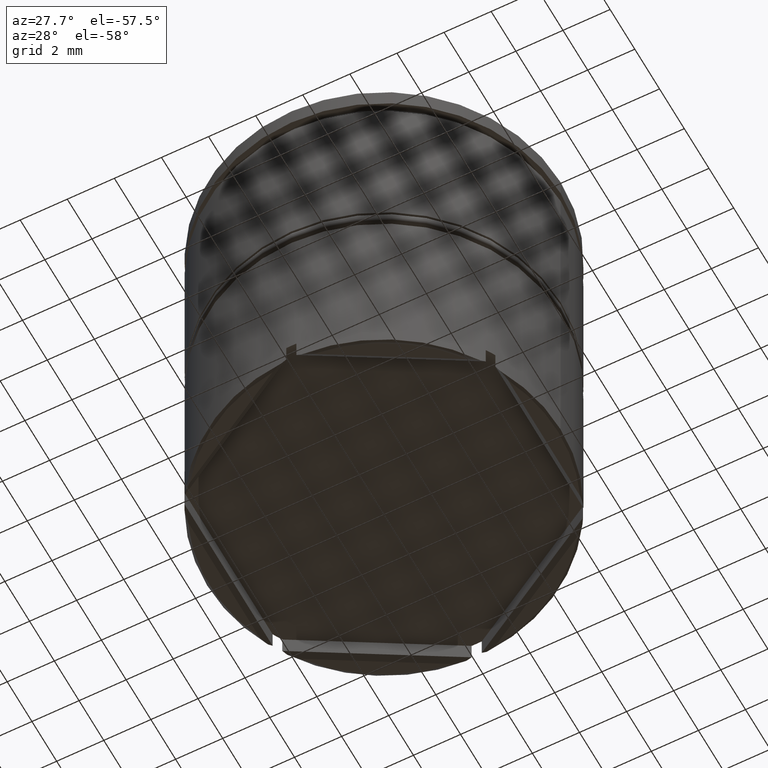
[diagram: clean part render]
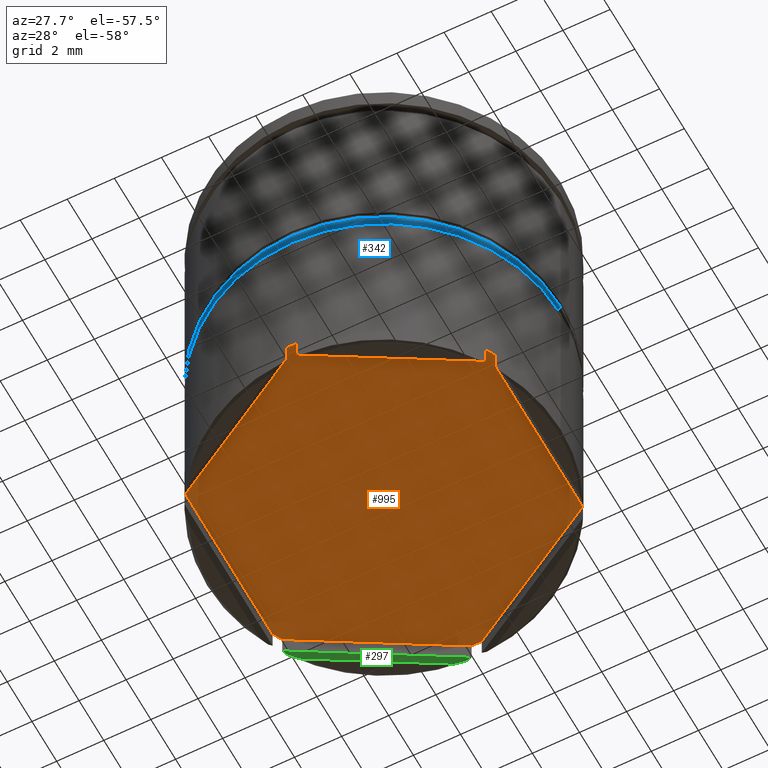
[diagram: same view with three faces highlighted in distinct colors, each labeled with its STEP entity id]
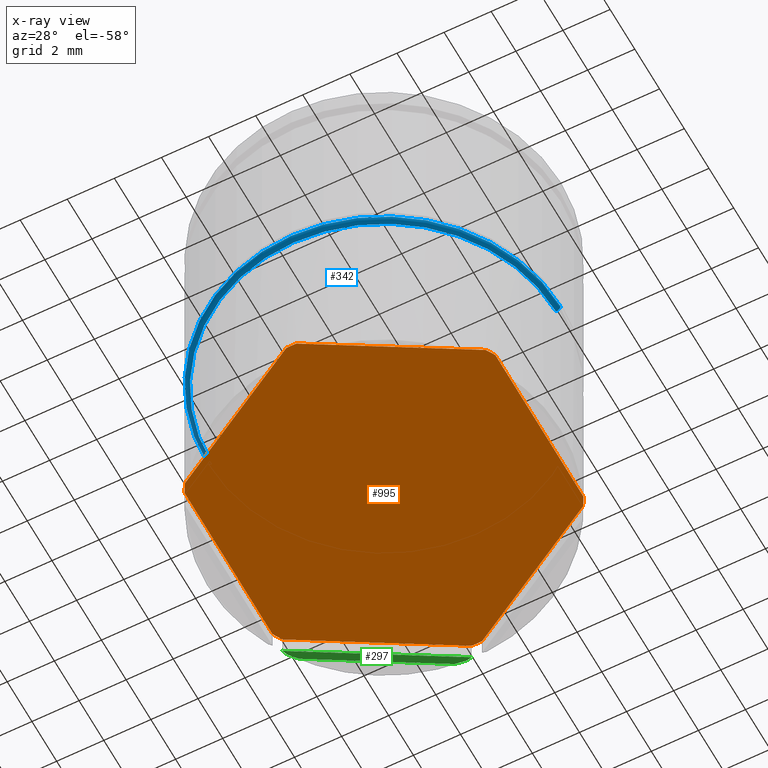
[diagram: x-ray of the same camera — body ghosted, the three highlighted faces saturated]
A machine part, auxiliary view with three faces highlighted in distinct colors.
The next image is the same camera in x-ray (body ghosted, the three faces saturated) — at least one of them is partly hidden behind the body in this view.
Their STEP definitions:

[orange] entity #995 — the highlighted planar face has unit normal (0, 0, -1).
#10 = CARTESIAN_POINT ( 'NONE',  ( -0.2149554298195408275, 7.496918978032982572, -16.50000000000000000 ) ) ;
#17 = CARTESIAN_POINT ( 'NONE',  ( -6.385044570180463452, 3.934616351921620403, -16.50000000000000000 ) ) ;
#30 = AXIS2_PLACEMENT_3D ( 'NONE', #534, #671, #566 ) ;
#31 = DIRECTION ( 'NONE',  ( -0.000000000000000000, -0.000000000000000000, 1.000000000000000000 ) ) ;
#33 = CARTESIAN_POINT ( 'NONE',  ( 6.600000000000005862, -3.810511776651533733, -16.50000000000000000 ) ) ;
#34 = VECTOR ( 'NONE', #1549, 1000.000000000000000 ) ;
#61 = AXIS2_PLACEMENT_3D ( 'NONE', #1058, #821, #684 ) ;
#76 = EDGE_CURVE ( 'NONE', #780, #1196, #521, .T. ) ;
#133 = CIRCLE ( 'NONE', #61, 7.500000000000000000 ) ;
#191 = VECTOR ( 'NONE', #811, 1000.000000000000000 ) ;
#194 = ORIENTED_EDGE ( 'NONE', *, *, #763, .F. ) ;
#219 = VERTEX_POINT ( 'NONE', #1021 ) ;
#257 = DIRECTION ( 'NONE',  ( -1.000000000000000000, 0.000000000000000000, -0.000000000000000000 ) ) ;
#272 = CARTESIAN_POINT ( 'NONE',  ( -6.385044570180465229, -3.934616351921614186, -16.50000000000000000 ) ) ;
#283 = VERTEX_POINT ( 'NONE', #1148 ) ;
#284 = DIRECTION ( 'NONE',  ( -0.000000000000000000, -0.000000000000000000, 1.000000000000000000 ) ) ;
#290 = ORIENTED_EDGE ( 'NONE', *, *, #1226, .F. ) ;
#318 = AXIS2_PLACEMENT_3D ( 'NONE', #889, #31, #653 ) ;
#319 = CARTESIAN_POINT ( 'NONE',  ( -0.2149554298195403834, -7.496918978032981684, -16.50000000000000000 ) ) ;
#326 = DIRECTION ( 'NONE',  ( 0.8660254037844385966, -0.5000000000000001110, 0.000000000000000000 ) ) ;
#328 = VERTEX_POINT ( 'NONE', #1180 ) ;
#329 = CARTESIAN_POINT ( 'NONE',  ( 0.000000000000000000, 0.000000000000000000, -16.50000000000000000 ) ) ;
#344 = DIRECTION ( 'NONE',  ( 0.8660254037844387076, 0.4999999999999997780, 0.000000000000000000 ) ) ;
#362 = CIRCLE ( 'NONE', #1219, 7.500000000000000000 ) ;
#366 = CARTESIAN_POINT ( 'NONE',  ( 6.600000000000003197, -3.562302626111365722, -16.50000000000000000 ) ) ;
#391 = DIRECTION ( 'NONE',  ( 0.000000000000000000, 0.000000000000000000, -1.000000000000000000 ) ) ;
#393 = PLANE ( 'NONE',  #1032 ) ;
#429 = CARTESIAN_POINT ( 'NONE',  ( 0.000000000000000000, 7.621023553303065690, -16.50000000000000000 ) ) ;
#437 = CARTESIAN_POINT ( 'NONE',  ( 6.385044570180463452, -3.934616351921617738, -16.50000000000000000 ) ) ;
#448 = DIRECTION ( 'NONE',  ( -1.000000000000000000, 0.000000000000000000, 0.000000000000000000 ) ) ;
#456 = DIRECTION ( 'NONE',  ( -0.8660254037844385966, 0.5000000000000001110, 0.000000000000000000 ) ) ;
#466 = LINE ( 'NONE', #979, #1166 ) ;
#519 = FACE_OUTER_BOUND ( 'NONE', #1519, .T. ) ;
#521 = CIRCLE ( 'NONE', #1453, 7.500000000000000000 ) ;
#525 = VECTOR ( 'NONE', #456, 1000.000000000000000 ) ;
#534 = CARTESIAN_POINT ( 'NONE',  ( 0.000000000000000000, 0.000000000000000000, -16.50000000000000000 ) ) ;
#538 = CARTESIAN_POINT ( 'NONE',  ( 0.2149554298195399393, -7.496918978032981684, -16.50000000000000000 ) ) ;
#557 = VECTOR ( 'NONE', #326, 1000.000000000000000 ) ;
#560 = CARTESIAN_POINT ( 'NONE',  ( -6.600000000000004974, -3.810511776651531513, -16.50000000000000000 ) ) ;
#566 = DIRECTION ( 'NONE',  ( -1.000000000000000000, 0.000000000000000000, 0.000000000000000000 ) ) ;
#568 = EDGE_CURVE ( 'NONE', #1118, #1526, #466, .T. ) ;
#585 = CIRCLE ( 'NONE', #318, 7.500000000000000000 ) ;
#620 = CARTESIAN_POINT ( 'NONE',  ( 6.385044570180465229, 3.934616351921614186, -16.50000000000000000 ) ) ;
#653 = DIRECTION ( 'NONE',  ( -1.000000000000000000, 7.283063041541026905E-14, 0.000000000000000000 ) ) ;
#671 = DIRECTION ( 'NONE',  ( -0.000000000000000000, -0.000000000000000000, 1.000000000000000000 ) ) ;
#684 = DIRECTION ( 'NONE',  ( -1.000000000000000000, 0.000000000000000000, 0.000000000000000000 ) ) ;
#744 = CIRCLE ( 'NONE', #30, 7.500000000000000000 ) ;
#749 = DIRECTION ( 'NONE',  ( -1.000000000000000000, -5.595524044110788964E-14, 0.000000000000000000 ) ) ;
#753 = EDGE_CURVE ( 'NONE', #328, #1587, #1292, .T. ) ;
#763 = EDGE_CURVE ( 'NONE', #283, #1555, #744, .T. ) ;
#780 = VERTEX_POINT ( 'NONE', #437 ) ;
#781 = VERTEX_POINT ( 'NONE', #319 ) ;
#811 = DIRECTION ( 'NONE',  ( 0.000000000000000000, 1.000000000000000000, 0.000000000000000000 ) ) ;
#815 = EDGE_CURVE ( 'NONE', #780, #847, #1301, .T. ) ;
#821 = DIRECTION ( 'NONE',  ( -0.000000000000000000, -0.000000000000000000, 1.000000000000000000 ) ) ;
#847 = VERTEX_POINT ( 'NONE', #538 ) ;
#848 = CARTESIAN_POINT ( 'NONE',  ( 0.000000000000000000, 0.000000000000000000, -16.50000000000000000 ) ) ;
#872 = EDGE_CURVE ( 'NONE', #1353, #1526, #585, .T. ) ;
#886 = DIRECTION ( 'NONE',  ( -0.000000000000000000, -0.000000000000000000, 1.000000000000000000 ) ) ;
#889 = CARTESIAN_POINT ( 'NONE',  ( 0.000000000000000000, 0.000000000000000000, -16.50000000000000000 ) ) ;
#901 = ORIENTED_EDGE ( 'NONE', *, *, #568, .T. ) ;
#902 = EDGE_CURVE ( 'NONE', #781, #1587, #912, .T. ) ;
#912 = LINE ( 'NONE', #1094, #525 ) ;
#930 = VECTOR ( 'NONE', #963, 1000.000000000000000 ) ;
#935 = EDGE_CURVE ( 'NONE', #1118, #219, #362, .T. ) ;
#945 = ORIENTED_EDGE ( 'NONE', *, *, #935, .F. ) ;
#963 = DIRECTION ( 'NONE',  ( 1.138117120255423023E-16, -1.000000000000000000, 0.000000000000000000 ) ) ;
#968 = ORIENTED_EDGE ( 'NONE', *, *, #753, .F. ) ;
#979 = CARTESIAN_POINT ( 'NONE',  ( -6.600000000000004974, 3.810511776651534621, -16.50000000000000000 ) ) ;
#990 = CARTESIAN_POINT ( 'NONE',  ( 0.000000000000000000, 0.000000000000000000, -16.50000000000000000 ) ) ;
#995 = ADVANCED_FACE ( 'NONE', ( #519 ), #393, .T. ) ;
#1021 = CARTESIAN_POINT ( 'NONE',  ( -6.600000000000003197, 3.562302626111366610, -16.50000000000000000 ) ) ;
#1032 = AXIS2_PLACEMENT_3D ( 'NONE', #1383, #391, #257 ) ;
#1033 = ORIENTED_EDGE ( 'NONE', *, *, #902, .T. ) ;
#1058 = CARTESIAN_POINT ( 'NONE',  ( 0.000000000000000000, 0.000000000000000000, -16.50000000000000000 ) ) ;
#1068 = CARTESIAN_POINT ( 'NONE',  ( 6.600000000000004974, 3.810511776651531957, -16.50000000000000000 ) ) ;
#1093 = ORIENTED_EDGE ( 'NONE', *, *, #872, .F. ) ;
#1094 = CARTESIAN_POINT ( 'NONE',  ( -4.310144132208485433E-16, -7.621023553303065690, -16.50000000000000000 ) ) ;
#1118 = VERTEX_POINT ( 'NONE', #17 ) ;
#1126 = DIRECTION ( 'NONE',  ( -0.000000000000000000, -0.000000000000000000, 1.000000000000000000 ) ) ;
#1148 = CARTESIAN_POINT ( 'NONE',  ( 6.600000000000003197, 3.562302626111367498, -16.50000000000000000 ) ) ;
#1162 = ORIENTED_EDGE ( 'NONE', *, *, #1235, .T. ) ;
#1166 = VECTOR ( 'NONE', #344, 1000.000000000000114 ) ;
#1172 = DIRECTION ( 'NONE',  ( -1.000000000000000000, 0.000000000000000000, 0.000000000000000000 ) ) ;
#1178 = LINE ( 'NONE', #560, #191 ) ;
#1180 = CARTESIAN_POINT ( 'NONE',  ( -6.600000000000003197, -3.562302626111366610, -16.50000000000000000 ) ) ;
#1196 = VERTEX_POINT ( 'NONE', #366 ) ;
#1208 = ORIENTED_EDGE ( 'NONE', *, *, #76, .F. ) ;
#1219 = AXIS2_PLACEMENT_3D ( 'NONE', #848, #886, #749 ) ;
#1226 = EDGE_CURVE ( 'NONE', #781, #847, #133, .T. ) ;
#1228 = EDGE_CURVE ( 'NONE', #283, #1196, #1289, .T. ) ;
#1230 = CARTESIAN_POINT ( 'NONE',  ( 0.2149554298195403834, 7.496918978032981684, -16.50000000000000000 ) ) ;
#1235 = EDGE_CURVE ( 'NONE', #1353, #1555, #1321, .T. ) ;
#1244 = AXIS2_PLACEMENT_3D ( 'NONE', #990, #284, #1172 ) ;
#1289 = LINE ( 'NONE', #1068, #930 ) ;
#1292 = CIRCLE ( 'NONE', #1244, 7.500000000000000000 ) ;
#1301 = LINE ( 'NONE', #33, #34 ) ;
#1306 = ORIENTED_EDGE ( 'NONE', *, *, #1228, .T. ) ;
#1308 = EDGE_CURVE ( 'NONE', #328, #219, #1178, .T. ) ;
#1321 = LINE ( 'NONE', #429, #557 ) ;
#1333 = ORIENTED_EDGE ( 'NONE', *, *, #815, .T. ) ;
#1353 = VERTEX_POINT ( 'NONE', #1230 ) ;
#1383 = CARTESIAN_POINT ( 'NONE',  ( 0.000000000000000000, 0.000000000000000000, -16.50000000000000000 ) ) ;
#1453 = AXIS2_PLACEMENT_3D ( 'NONE', #329, #1126, #448 ) ;
#1519 = EDGE_LOOP ( 'NONE', ( #1573, #945, #901, #1093, #1162, #194, #1306, #1208, #1333, #290, #1033, #968 ) ) ;
#1526 = VERTEX_POINT ( 'NONE', #10 ) ;
#1549 = DIRECTION ( 'NONE',  ( -0.8660254037844387076, -0.4999999999999998335, 0.000000000000000000 ) ) ;
#1555 = VERTEX_POINT ( 'NONE', #620 ) ;
#1573 = ORIENTED_EDGE ( 'NONE', *, *, #1308, .T. ) ;
#1587 = VERTEX_POINT ( 'NONE', #272 ) ;

[blue] entity #342 — the highlighted toroidal blend (fillet) surface has major radius 7.3 mm and minor (blend) radius 0.2 mm.
#6 = CARTESIAN_POINT ( 'NONE',  ( 0.000000000000000000, 0.000000000000000000, -8.800000000000002487 ) ) ;
#28 = ORIENTED_EDGE ( 'NONE', *, *, #672, .T. ) ;
#36 = DIRECTION ( 'NONE',  ( 0.000000000000000000, -1.000000000000000000, 0.000000000000000000 ) ) ;
#74 = DIRECTION ( 'NONE',  ( 1.000000000000000000, 0.000000000000000000, 0.000000000000000000 ) ) ;
#80 = AXIS2_PLACEMENT_3D ( 'NONE', #6, #756, #505 ) ;
#123 = VERTEX_POINT ( 'NONE', #1339 ) ;
#143 = DIRECTION ( 'NONE',  ( 1.224646799147353207E-16, 1.000000000000000000, -0.000000000000000000 ) ) ;
#151 = EDGE_CURVE ( 'NONE', #123, #1142, #1261, .T. ) ;
#253 = CARTESIAN_POINT ( 'NONE',  ( -7.299999999999999822, 8.939921633775678831E-16, -8.800000000000002487 ) ) ;
#302 = VERTEX_POINT ( 'NONE', #805 ) ;
#311 = FACE_OUTER_BOUND ( 'NONE', #533, .T. ) ;
#342 = ADVANCED_FACE ( 'NONE', ( #311 ), #578, .T. ) ;
#390 = CARTESIAN_POINT ( 'NONE',  ( 7.500000000000000000, 0.000000000000000000, -8.800000000000002487 ) ) ;
#433 = ORIENTED_EDGE ( 'NONE', *, *, #658, .F. ) ;
#505 = DIRECTION ( 'NONE',  ( 1.000000000000000000, 0.000000000000000000, 0.000000000000000000 ) ) ;
#527 = AXIS2_PLACEMENT_3D ( 'NONE', #1452, #1209, #74 ) ;
#531 = DIRECTION ( 'NONE',  ( 0.000000000000000000, 0.000000000000000000, -1.000000000000000000 ) ) ;
#533 = EDGE_LOOP ( 'NONE', ( #433, #807, #28, #670 ) ) ;
#578 = TOROIDAL_SURFACE ( 'NONE', #873, 7.299999999999999822, 0.2000000000000000111 ) ;
#657 = CARTESIAN_POINT ( 'NONE',  ( 7.299999999999999822, 0.000000000000000000, -8.800000000000002487 ) ) ;
#658 = EDGE_CURVE ( 'NONE', #302, #123, #1484, .T. ) ;
#670 = ORIENTED_EDGE ( 'NONE', *, *, #151, .F. ) ;
#672 = EDGE_CURVE ( 'NONE', #741, #1142, #825, .T. ) ;
#741 = VERTEX_POINT ( 'NONE', #1113 ) ;
#756 = DIRECTION ( 'NONE',  ( 0.000000000000000000, 0.000000000000000000, 1.000000000000000000 ) ) ;
#805 = CARTESIAN_POINT ( 'NONE',  ( -7.299999999999999822, 9.062386313690412402E-16, -9.000000000000001776 ) ) ;
#807 = ORIENTED_EDGE ( 'NONE', *, *, #1319, .F. ) ;
#825 = CIRCLE ( 'NONE', #1087, 0.2000000000000005107 ) ;
#873 = AXIS2_PLACEMENT_3D ( 'NONE', #1070, #917, #1412 ) ;
#875 = AXIS2_PLACEMENT_3D ( 'NONE', #253, #143, #1130 ) ;
#917 = DIRECTION ( 'NONE',  ( 0.000000000000000000, 0.000000000000000000, 1.000000000000000000 ) ) ;
#1070 = CARTESIAN_POINT ( 'NONE',  ( 0.000000000000000000, 0.000000000000000000, -8.800000000000002487 ) ) ;
#1087 = AXIS2_PLACEMENT_3D ( 'NONE', #657, #36, #531 ) ;
#1113 = CARTESIAN_POINT ( 'NONE',  ( 7.299999999999999822, 0.000000000000000000, -9.000000000000001776 ) ) ;
#1130 = DIRECTION ( 'NONE',  ( -1.000000000000000000, 1.224646799147358384E-16, 0.000000000000000000 ) ) ;
#1142 = VERTEX_POINT ( 'NONE', #390 ) ;
#1209 = DIRECTION ( 'NONE',  ( -0.000000000000000000, -0.000000000000000000, -1.000000000000000000 ) ) ;
#1261 = CIRCLE ( 'NONE', #80, 7.500000000000000000 ) ;
#1319 = EDGE_CURVE ( 'NONE', #741, #302, #1571, .T. ) ;
#1339 = CARTESIAN_POINT ( 'NONE',  ( -7.500000000000000000, 9.184850993605145972E-16, -8.800000000000002487 ) ) ;
#1412 = DIRECTION ( 'NONE',  ( 1.000000000000000000, 0.000000000000000000, 0.000000000000000000 ) ) ;
#1452 = CARTESIAN_POINT ( 'NONE',  ( 0.000000000000000000, 0.000000000000000000, -9.000000000000001776 ) ) ;
#1484 = CIRCLE ( 'NONE', #875, 0.1999999999999996503 ) ;
#1571 = CIRCLE ( 'NONE', #527, 7.299999999999999822 ) ;

[green] entity #297 — the highlighted planar face has unit normal (0.3536, -0.6124, -0.7071).
#170 = CARTESIAN_POINT ( 'NONE',  ( -6.268903903865273186, 4.117140250720484396, -17.40000000000000568 ) ) ;
#200 = CARTESIAN_POINT ( 'NONE',  ( -6.043444844604824340, 4.326829627329009220, -17.46886679741648507 ) ) ;
#234 = CARTESIAN_POINT ( 'NONE',  ( -6.308493677530949917, 4.056859455903631506, -17.36759018716113090 ) ) ;
#246 = VECTOR ( 'NONE', #1523, 1000.000000000000114 ) ;
#260 = VERTEX_POINT ( 'NONE', #1307 ) ;
#278 = EDGE_CURVE ( 'NONE', #1177, #1349, #1031, .T. ) ;
#297 = ADVANCED_FACE ( 'NONE', ( #1524 ), #379, .T. ) ;
#340 = CARTESIAN_POINT ( 'NONE',  ( -0.8721550680470913086, 7.348424697666833261, -17.50000000000000000 ) ) ;
#347 = CARTESIAN_POINT ( 'NONE',  ( -0.5783374065156692279, 7.443572463249804372, -17.43549155134247286 ) ) ;
#376 = VERTEX_POINT ( 'NONE', #567 ) ;
#379 = PLANE ( 'NONE',  #412 ) ;
#394 = CARTESIAN_POINT ( 'NONE',  ( -6.298275349237890453, 4.215652692666036039, -17.50000000000000000 ) ) ;
#409 = CARTESIAN_POINT ( 'NONE',  ( -5.927844931952915175, 4.429520793801543732, -17.50000000000000000 ) ) ;
#412 = AXIS2_PLACEMENT_3D ( 'NONE', #899, #754, #1249 ) ;
#435 = ORIENTED_EDGE ( 'NONE', *, *, #507, .F. ) ;
#436 = CARTESIAN_POINT ( 'NONE',  ( -0.2149554298195408275, 7.496918978032982572, -17.30000000000000426 ) ) ;
#463 = CARTESIAN_POINT ( 'NONE',  ( -0.4310960961347331533, 7.487600159991009363, -17.40000000000000568 ) ) ;
#469 = ORIENTED_EDGE ( 'NONE', *, *, #278, .F. ) ;
#500 = EDGE_CURVE ( 'NONE', #1632, #1177, #1544, .T. ) ;
#507 = EDGE_CURVE ( 'NONE', #260, #376, #1400, .T. ) ;
#551 = ORIENTED_EDGE ( 'NONE', *, *, #500, .F. ) ;
#567 = CARTESIAN_POINT ( 'NONE',  ( -6.385044570180463452, 3.934616351921620403, -17.30000000000000426 ) ) ;
#621 = B_SPLINE_CURVE_WITH_KNOTS ( 'NONE', 3,
 ( #409, #200, #1559, #170 ),
 .UNSPECIFIED., .F., .F.,
 ( 4, 4 ),
 ( 1.226634733346699349E-18, 0.0004731837127559787625 ),
 .UNSPECIFIED. ) ;
#628 = CARTESIAN_POINT ( 'NONE',  ( -0.2870446246139899404, 7.494852000398866565, -17.33425454225702822 ) ) ;
#639 = CARTESIAN_POINT ( 'NONE',  ( -0.8721550680470913086, 7.348424697666833261, -17.50000000000000000 ) ) ;
#641 = DIRECTION ( 'NONE',  ( -0.8660254037844388186, -0.4999999999999997780, 0.000000000000000000 ) ) ;
#702 = ORIENTED_EDGE ( 'NONE', *, *, #1259, .F. ) ;
#737 = CARTESIAN_POINT ( 'NONE',  ( -6.347209917643041877, 3.996013937134917260, -17.33425454225702467 ) ) ;
#754 = DIRECTION ( 'NONE',  ( 0.3535533905932736198, -0.6123724356957946924, -0.7071067811865475727 ) ) ;
#899 = CARTESIAN_POINT ( 'NONE',  ( -6.600000000000004974, 3.810511776651534621, -17.30000000000000426 ) ) ;
#956 = EDGE_CURVE ( 'NONE', #376, #1316, #1569, .T. ) ;
#1015 = CARTESIAN_POINT ( 'NONE',  ( -0.2149554298195408275, 7.496918978032982572, -17.30000000000000426 ) ) ;
#1018 = CARTESIAN_POINT ( 'NONE',  ( -0.4017246507621112794, 7.389087718045452391, -17.30000000000000426 ) ) ;
#1031 = LINE ( 'NONE', #394, #1369 ) ;
#1099 = CARTESIAN_POINT ( 'NONE',  ( -5.927844931952915175, 4.429520793801543732, -17.50000000000000000 ) ) ;
#1136 = CARTESIAN_POINT ( 'NONE',  ( -0.4310960961347331533, 7.487600159991009363, -17.40000000000000568 ) ) ;
#1161 = CARTESIAN_POINT ( 'NONE',  ( -0.3590965096301862447, 7.491745512307136146, -17.36759018716113445 ) ) ;
#1177 = VERTEX_POINT ( 'NONE', #639 ) ;
#1239 = CARTESIAN_POINT ( 'NONE',  ( -6.385044570180463452, 3.934616351921620403, -17.30000000000000426 ) ) ;
#1249 = DIRECTION ( 'NONE',  ( -0.8660254037844387076, -0.4999999999999997224, 0.000000000000000000 ) ) ;
#1259 = EDGE_CURVE ( 'NONE', #1349, #260, #621, .T. ) ;
#1300 = CARTESIAN_POINT ( 'NONE',  ( -0.4310960961347331533, 7.487600159991009363, -17.40000000000000568 ) ) ;
#1307 = CARTESIAN_POINT ( 'NONE',  ( -6.268903903865273186, 4.117140250720484396, -17.40000000000000568 ) ) ;
#1316 = VERTEX_POINT ( 'NONE', #436 ) ;
#1349 = VERTEX_POINT ( 'NONE', #1099 ) ;
#1360 = CARTESIAN_POINT ( 'NONE',  ( -6.268903903865273186, 4.117140250720484396, -17.40000000000000568 ) ) ;
#1369 = VECTOR ( 'NONE', #641, 1000.000000000000114 ) ;
#1400 =( BOUNDED_CURVE ( )  B_SPLINE_CURVE ( 3, ( #1360, #234, #737, #1239 ),
 .UNSPECIFIED., .F., .T. ) 
 B_SPLINE_CURVE_WITH_KNOTS ( ( 4, 4 ),
 ( 3.607680251568622598, 3.636526779930687070 ),
 .UNSPECIFIED. ) 
 CURVE ( )  GEOMETRIC_REPRESENTATION_ITEM ( )  RATIONAL_B_SPLINE_CURVE ( ( 1.000000000000000000, 0.9999306576855770956, 0.9999306576855770956, 1.000000000000000000 ) ) 
 REPRESENTATION_ITEM ( '' )  );
#1445 =( BOUNDED_CURVE ( )  B_SPLINE_CURVE ( 3, ( #1015, #628, #1161, #1136 ),
 .UNSPECIFIED., .F., .T. ) 
 B_SPLINE_CURVE_WITH_KNOTS ( ( 4, 4 ),
 ( 2.646658527248900050, 2.675505055610964522 ),
 .UNSPECIFIED. ) 
 CURVE ( )  GEOMETRIC_REPRESENTATION_ITEM ( )  RATIONAL_B_SPLINE_CURVE ( ( 1.000000000000000000, 0.9999306576855770956, 0.9999306576855770956, 1.000000000000000000 ) ) 
 REPRESENTATION_ITEM ( '' )  );
#1458 = ORIENTED_EDGE ( 'NONE', *, *, #956, .F. ) ;
#1480 = CARTESIAN_POINT ( 'NONE',  ( -0.7254219528116601090, 7.397191575462383817, -17.46886679741648507 ) ) ;
#1523 = DIRECTION ( 'NONE',  ( 0.8660254037844387076, 0.4999999999999997224, 0.000000000000000000 ) ) ;
#1524 = FACE_OUTER_BOUND ( 'NONE', #1579, .T. ) ;
#1544 = B_SPLINE_CURVE_WITH_KNOTS ( 'NONE', 3,
 ( #463, #347, #1480, #340 ),
 .UNSPECIFIED., .F., .F.,
 ( 4, 4 ),
 ( 0.000000000000000000, 0.0004731837127559797383 ),
 .UNSPECIFIED. ) ;
#1559 = CARTESIAN_POINT ( 'NONE',  ( -6.157154144826803233, 4.222641117626284135, -17.43549155134247286 ) ) ;
#1569 = LINE ( 'NONE', #1018, #246 ) ;
#1576 = EDGE_CURVE ( 'NONE', #1316, #1632, #1445, .T. ) ;
#1579 = EDGE_LOOP ( 'NONE', ( #702, #469, #551, #1634, #1458, #435 ) ) ;
#1632 = VERTEX_POINT ( 'NONE', #1300 ) ;
#1634 = ORIENTED_EDGE ( 'NONE', *, *, #1576, .F. ) ;